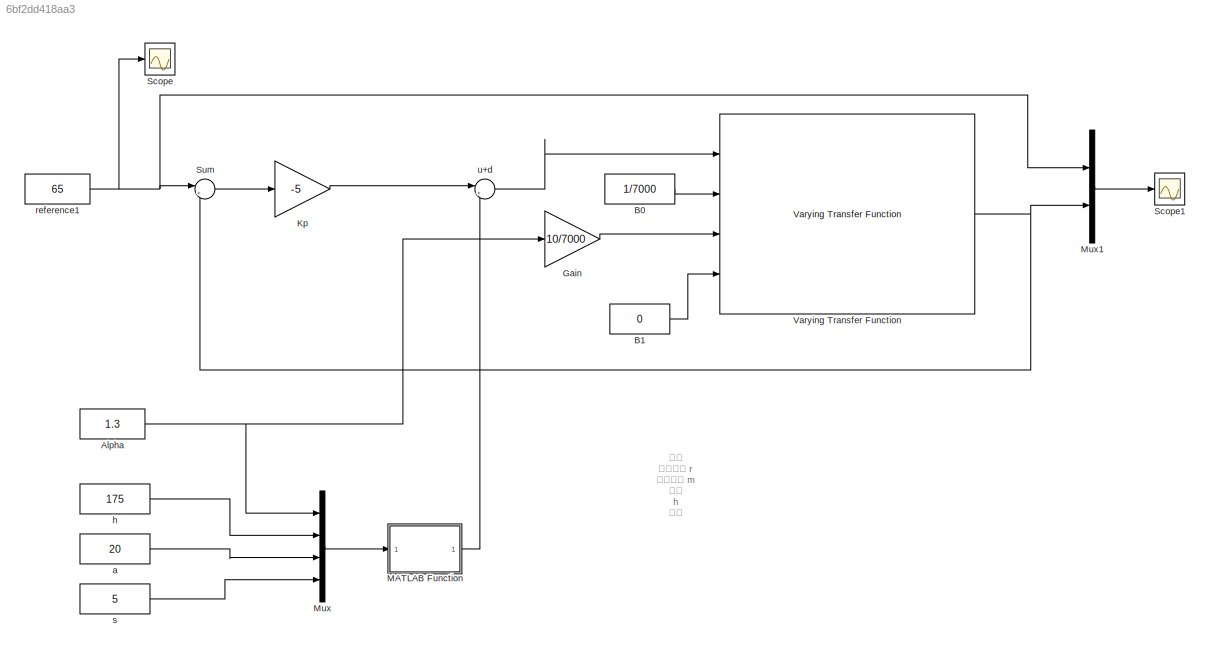
MODEL slx_6bf2dd418aa3
KIND model
CONFIG AbsTol = auto
CONFIG EnableMultiTasking = off
CONFIG FixedStep = auto
CONFIG MaxStep = auto
CONFIG MinStep = auto
CONFIG RelTol = 1e-3
CONFIG SampleTimeConstraint = Unconstrained
CONFIG SolverName = VariableStepAuto
CONFIG StartTime = 0.0
CONFIG StopTime = 500
BLOCK [Constant] Alpha
  Value = 1.3
BLOCK [Constant] B0
  Value = 1/7000
BLOCK [Constant] B1
  Value = 0
BLOCK [Gain] Gain
  Gain = 10/7000
BLOCK [Gain] Kp
  Gain = -5
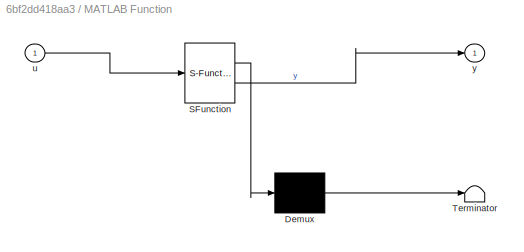
BLOCK [SubSystem] MATLAB Function
  ErrorFcn = Stateflow.Translate.translate
  PermitHierarchicalResolution = ExplicitOnly
  Ports = [1, 1]
  RequestExecContextInheritance = off
  SFBlockType = MATLAB Function
  TreatAsAtomicUnit = on
BLOCK [Demux] MATLAB Function/ Demux 
  Outputs = 1
  Ports = [1, 1]
BLOCK [S-Function] MATLAB Function/ SFunction 
  EnableBusSupport = on
  FunctionName = sf_sfun
  PortCounts = [1 2]
  Ports = [1, 2]
  SFcnIsStateOwnerBlock = off
  SFunctionDeploymentMode = off
  Tag = Stateflow S-Function 2
BLOCK [Terminator] MATLAB Function/ Terminator 
BLOCK [Inport] MATLAB Function/u
BLOCK [Outport] MATLAB Function/y
BLOCK [Mux] Mux
  DisplayOption = bar
  Ports = [4, 1]
BLOCK [Mux] Mux1
  DisplayOption = bar
  Inputs = 2
  Ports = [2, 1]
BLOCK [Scope] Scope
  Floating = off
  NumInputPorts = 1
  Ports = [1]
  ScopeSpecificationString = Simulink.scopes.TimeScopeBlockCfg('CurrentConfiguration', extmgr.ConfigurationSet(extmgr.Configuration('Core','General UI',true),extmgr.Configuration('Core','Source UI',true),extmgr.Configuration('Sources','WiredSimulink',true),extmgr.Configuration('Visuals','Time Domain',true,'SerializedDisplays',{struct('MinYLimReal','55.00000','MaxYLimReal','75.00000','YLabelReal','','MinYLimMag','55.00000','Ma...<+1371ch>
BLOCK [Scope] Scope1
  Floating = off
  NumInputPorts = 1
  Ports = [1]
  ScopeSpecificationString = Simulink.scopes.TimeScopeBlockCfg('CurrentConfiguration', extmgr.ConfigurationSet(extmgr.Configuration('Core','General UI',true),extmgr.Configuration('Core','Source UI',true),extmgr.Configuration('Sources','WiredSimulink',true,'DataLoggingVariableName','ScopeData1'),extmgr.Configuration('Visuals','Time Domain',true,'SerializedDisplays',{struct('MinYLimReal','-58.54461','MaxYLimReal','95.39385','YL...<+1434ch>
BLOCK [Sum] Sum
  Inputs = |+-
  Ports = [2, 1]
BLOCK [Reference] Varying Transfer Function  REF=cstblocks/Linear Parameter Varying/Varying Transfer Function
  Ports = [4, 1]
  SourceBlock = cstblocks/Linear Parameter Varying/Varying Transfer Function
  SourceProductBaseCode = CT
  SourceType = Varying Transfer Function
BLOCK [Constant] a
  Value = 20
BLOCK [Constant] h
  Value = 175
BLOCK [Constant] reference1
  Value = 65
BLOCK [Constant] s
  Value = 5
BLOCK [Sum] u+d
  Inputs = |++
  Ports = [2, 1]
ANNOTATION (root): 性別 目標體重 r 當前體重 m 身高 h 年紀 a 消耗係數 $\alpha$ 男 65 80 175 20 1.3
NET Alpha:1 -> Gain:1, Mux:1
LINE B0:1 -> Varying Transfer Function:2
LINE B1:1 -> Varying Transfer Function:4
LINE Gain:1 -> Varying Transfer Function:3
LINE Kp:1 -> u+d:1
LINE MATLAB Function:1 -> u+d:2
LINE Mux1:1 -> Scope1:1
LINE Mux:1 -> MATLAB Function:1
LINE Sum:1 -> Kp:1
NET Varying Transfer Function:1 -> Mux1:2, Sum:2
LINE a:1 -> Mux:3
LINE h:1 -> Mux:2
NET reference1:1 -> Mux1:1, Scope:1, Sum:1
LINE s:1 -> Mux:4
LINE u+d:1 -> Varying Transfer Function:1
note: NET lines group one-source signal fan-out (src -> all destinations, sorted); 1:1 wires keep LINE
CHART MATLAB Function states=1 transitions=1
  STATE_LABEL 'eML_blk_kernel()'
  STATE_LABEL 'SCRIPT:\nfunction y = fcn(u)\ny = -u(1)*(6.25*u(2)-5*u(3)+u(4));\n'
CHART  states=0 transitions=0
